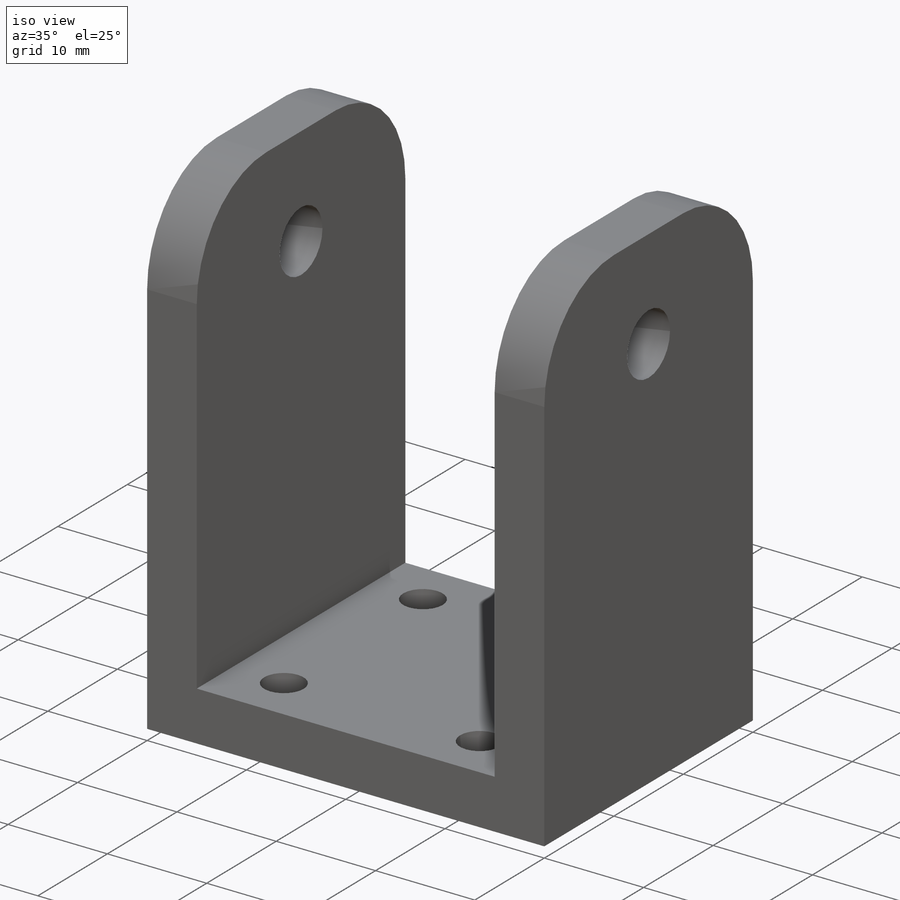
[diagram: iso view]
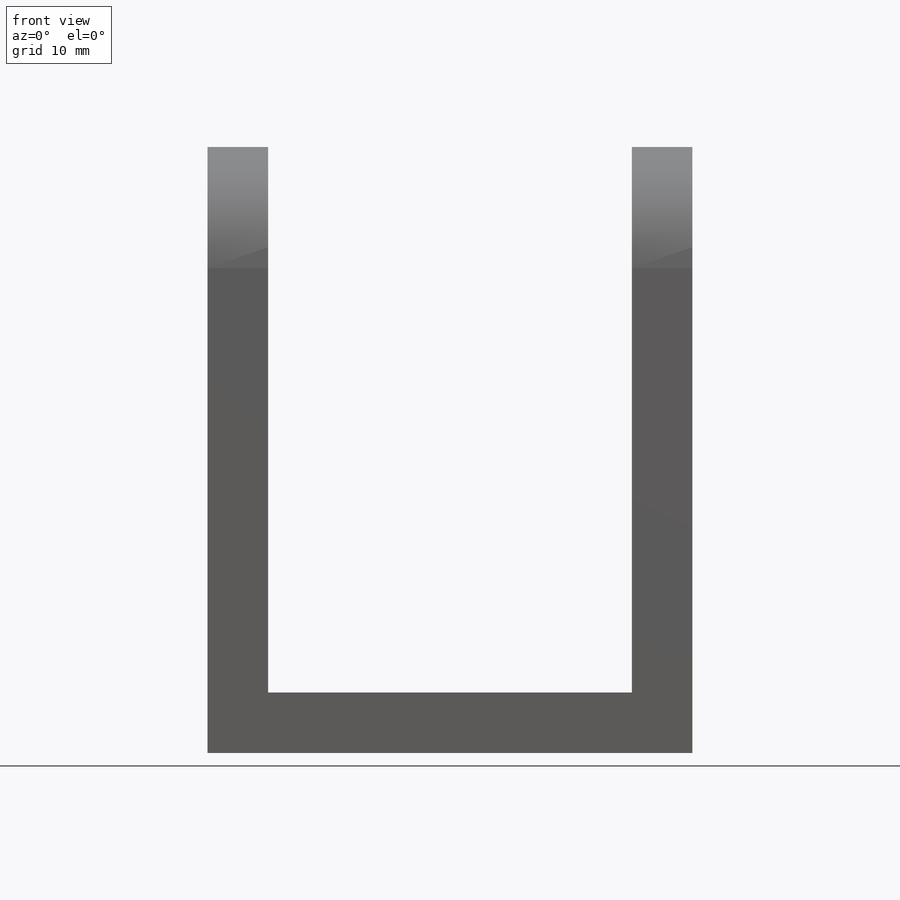
[diagram: front view]
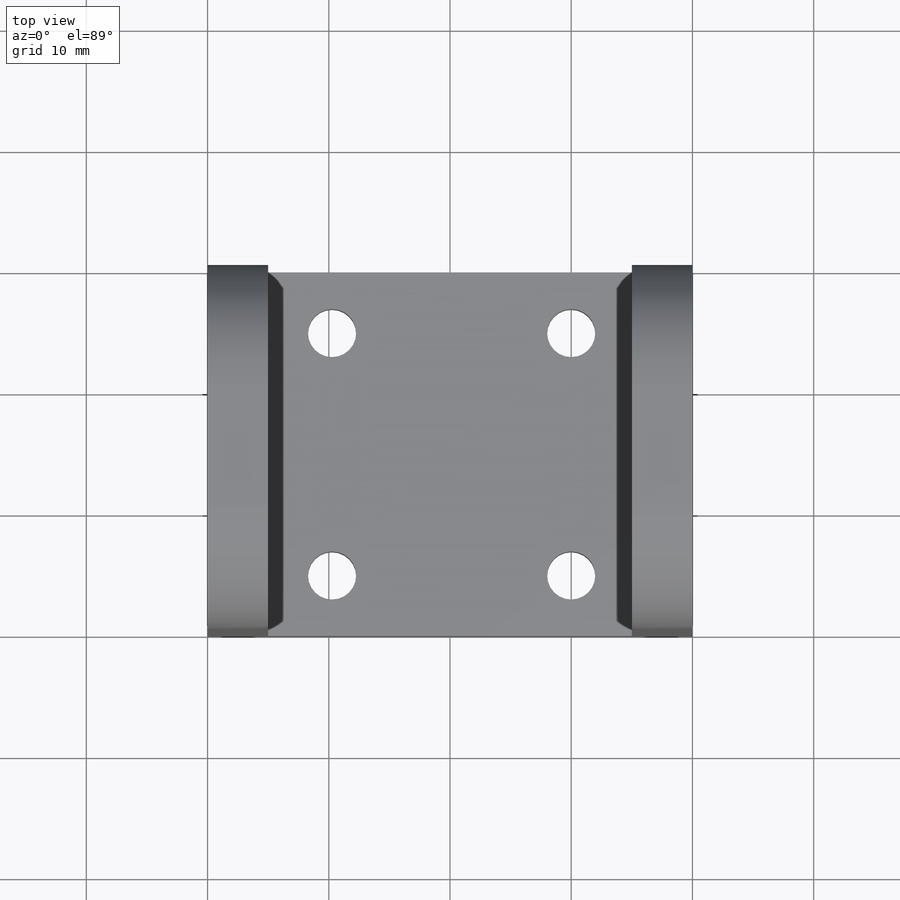
[diagram: top view]
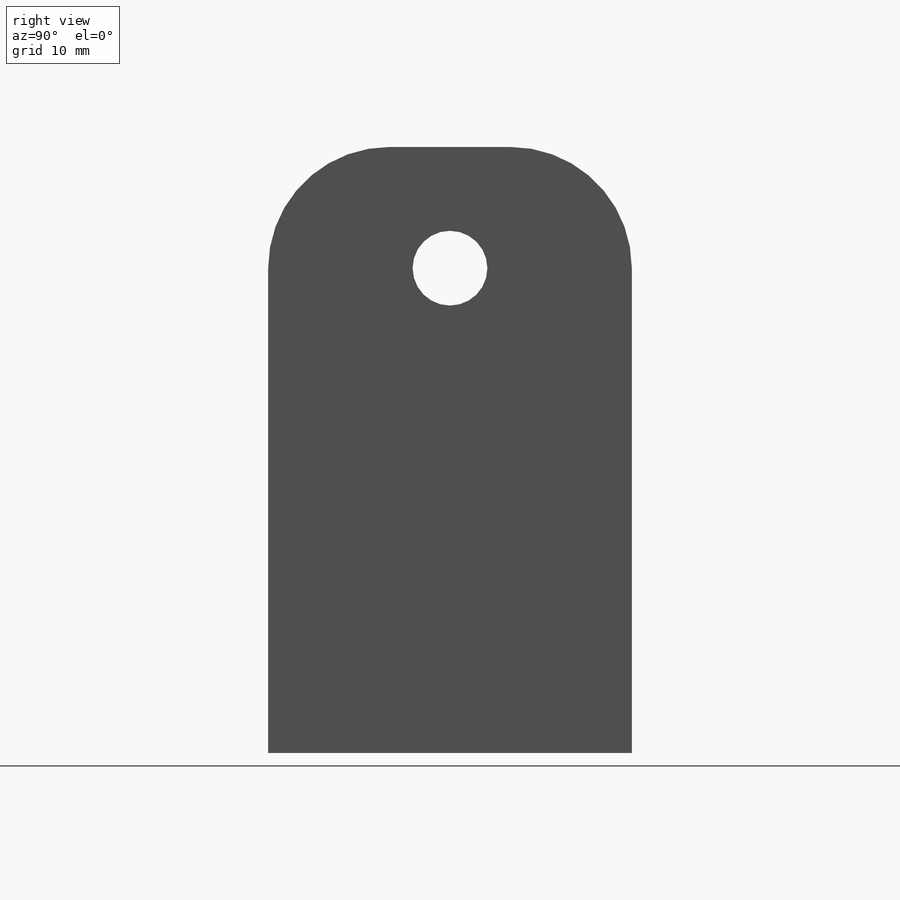
[diagram: right view]
SOLIDWORKS PART (.sldprt)
format: sldprt  version: not decoded by parser v0  size: 220,672 bytes
history: native  units: mm
features: sketch x5, cut_extrude x4, material x1, extrude x1, fillet x1 (+13 scaffold rows collapsed)
feature tree (25):
  scaffold x13  (default folders/planes/origin — collapsed)
  material  "6061 Alloy"
  sketch  "Sketch1"  dims[D1=30.0mm D2=40.0mm]
  extrude  "Boss-Extrude1"  Depth=50mm
  sketch  "Sketch2"  dims[D1=5.0mm D2=5.0mm D3=5.0mm]
  cut_extrude  "Cut-Extrude1"  Depth=30mm
  fillet  "Fillet1"  Radius=10mm
  sketch  "Sketch3"  dims[D1=~3.96875mm D2=~3.96875mm D3=5.0mm D4=5.0mm]
  cut_extrude  "Cut-Extrude2"  Depth=30mm
  sketch  "Sketch4"  dims[D1=15.0mm D2=10.0mm]
  cut_extrude  "Cut-Extrude3"  Depth=55mm
  sketch  "Sketch5"  dims[D1=~3.96875mm D2=~3.96875mm D3=5.0mm D4=5.0mm D5=5.0mm D6=5.0mm]
  cut_extrude  "Cut-Extrude4"  Depth=30mm
decode coverage: 11 of 11 modeling features carry decoded parameters
note: ~ marks probable driven/reference dimensions
note: suppression state not decoded; provenance and decode notes live in map.json
